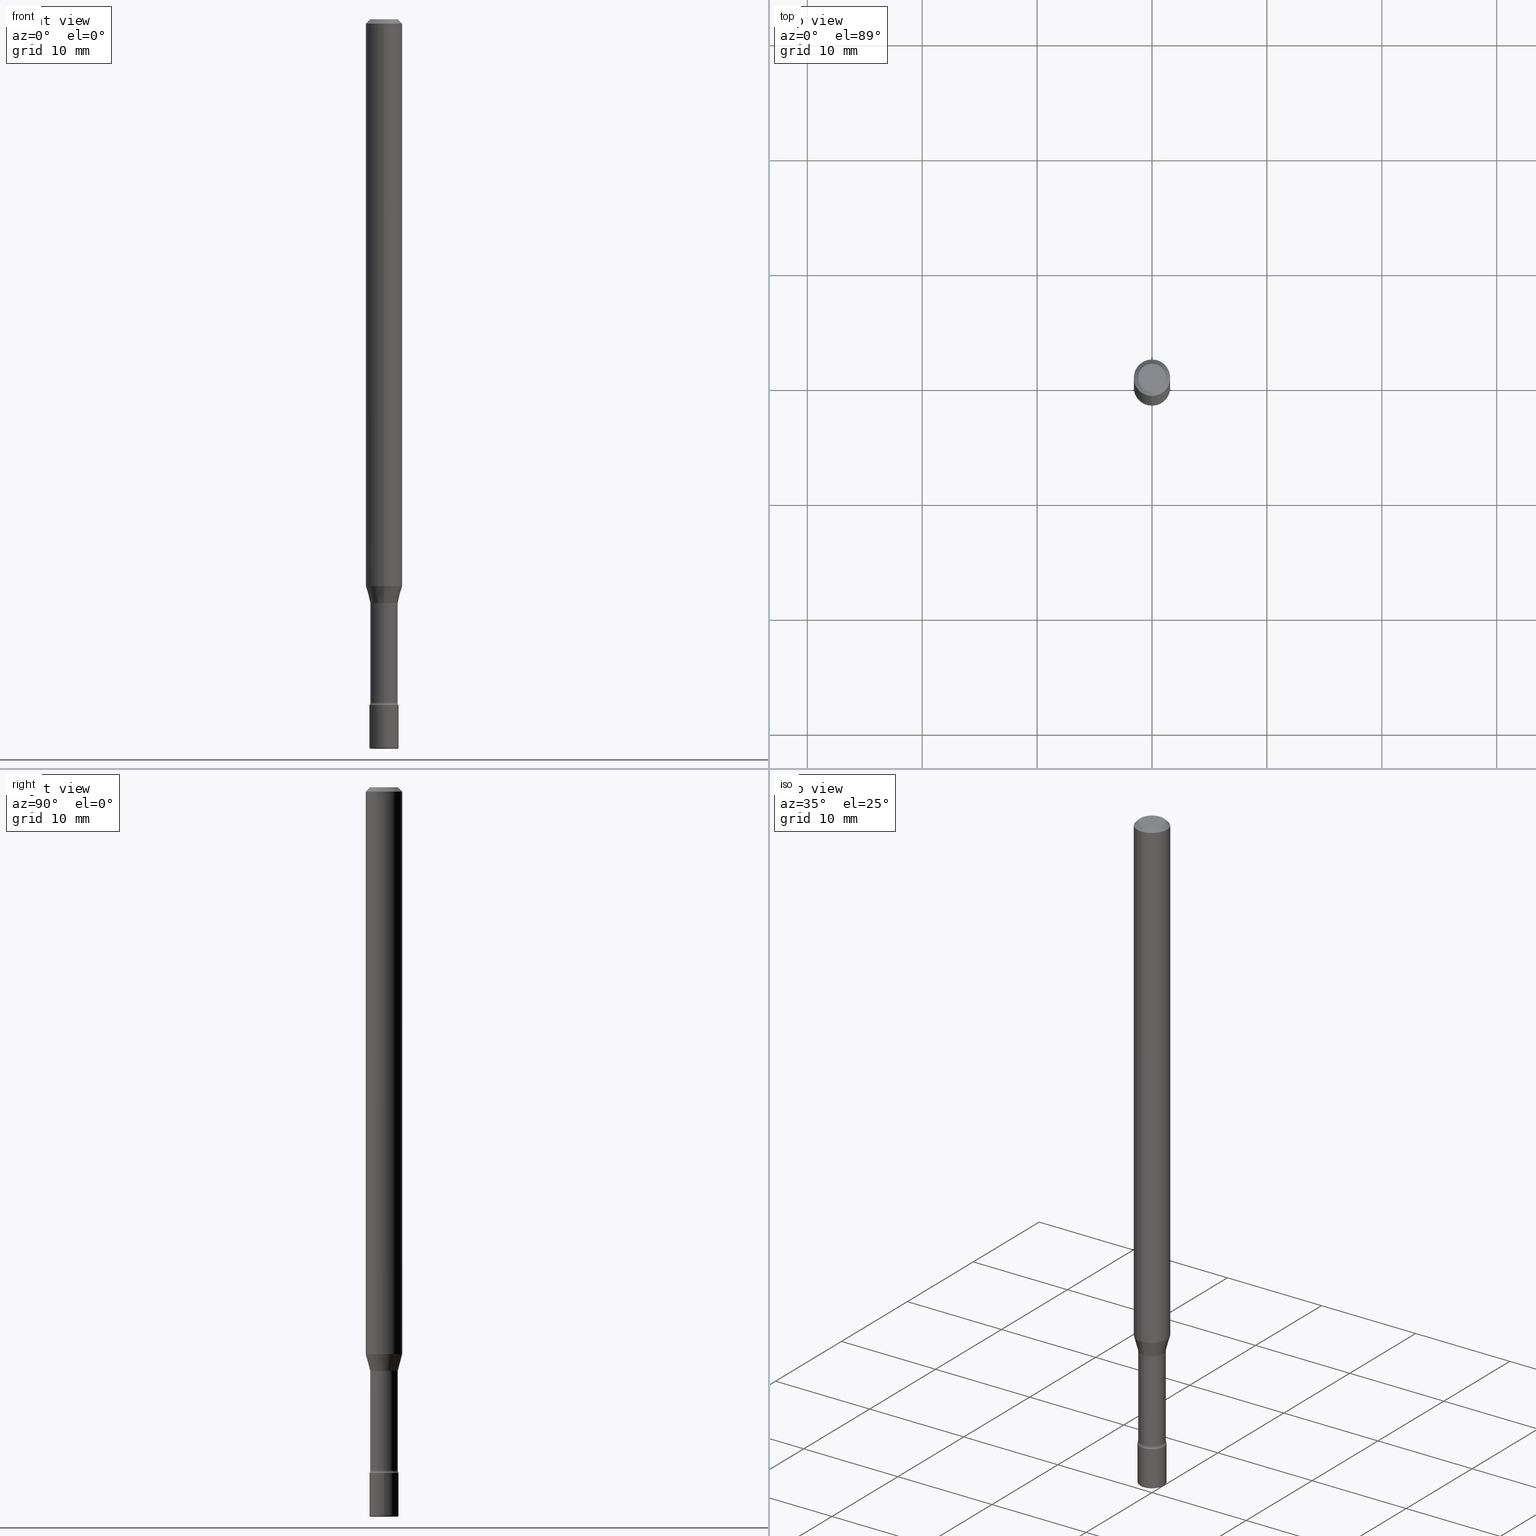
[diagram: canonical four-view strip — front | top / right | iso, engineering-drawing reading convention]
A machine part, canonical four-view strip (front | top / right | iso — engineering-drawing reading convention). The complete STEP part file that produces these views, byte-faithful:
ISO-10303-21;
HEADER;
FILE_DESCRIPTION (( 'STEP AP203' ),
    '1' );
FILE_NAME ('08959.STEP',
    '2024-03-06T20:12:32',
    ( '' ),
    ( '' ),
    'SwSTEP 2.0',
    'SolidWorks 2023',
    '' );
FILE_SCHEMA (( 'CONFIG_CONTROL_DESIGN' ));
ENDSEC;

DATA;
#1 = LINE ( 'NONE', #183, #16 ) ;
#2 = LOCAL_TIME ( 15, 12, 32.00000000000000000, #310 ) ;
#3 = CARTESIAN_POINT ( 'NONE',  ( -1.169113584055446105E-44, 1.669184350826100908E-30, 4.780733988912460139E-16 ) ) ;
#4 = ORIENTED_EDGE ( 'NONE', *, *, #448, .T. ) ;
#5 = LINE ( 'NONE', #251, #171 ) ;
#6 = EDGE_LOOP ( 'NONE', ( #67, #489, #230, #445 ) ) ;
#7 = ORIENTED_EDGE ( 'NONE', *, *, #199, .F. ) ;
#8 = VERTEX_POINT ( 'NONE', #492 ) ;
#9 = ADVANCED_FACE ( 'NONE', ( #273 ), #209, .T. ) ;
#10 = CYLINDRICAL_SURFACE ( 'NONE', #491, 0.06250000000000000000 ) ;
#11 = EDGE_LOOP ( 'NONE', ( #221, #96, #320, #276 ) ) ;
#12 = ORIENTED_EDGE ( 'NONE', *, *, #242, .F. ) ;
#13 = PERSON_AND_ORGANIZATION ( #355, #427 ) ;
#14 = AXIS2_PLACEMENT_3D ( 'NONE', #316, #447, #131 ) ;
#15 = ORIENTED_EDGE ( 'NONE', *, *, #540, .T. ) ;
#16 = VECTOR ( 'NONE', #361, 39.37007874015748143 ) ;
#17 = LINE ( 'NONE', #194, #461 ) ;
#18 = EDGE_CURVE ( 'NONE', #228, #111, #451, .T. ) ;
#19 = ORIENTED_EDGE ( 'NONE', *, *, #479, .F. ) ;
#20 = DIRECTION ( 'NONE',  ( -6.982962677686265922E-15, -1.000000000000000000, 5.812442539711197800E-15 ) ) ;
#21 = VERTEX_POINT ( 'NONE', #225 ) ;
#22 = PRODUCT_DEFINITION_SHAPE ( 'NONE', 'NONE',  #473 ) ;
#23 = CARTESIAN_POINT ( 'NONE',  ( 5.724842475279404612E-29, -8.173557814231803142E-15, -2.341000000000000192 ) ) ;
#24 = EDGE_LOOP ( 'NONE', ( #317, #494, #382, #223 ) ) ;
#25 = CONICAL_SURFACE ( 'NONE', #44, 0.04751111260566397154, 0.2617993877991500740 ) ;
#26 = APPROVAL_PERSON_ORGANIZATION ( #219, #367, #263 ) ;
#27 = APPLICATION_PROTOCOL_DEFINITION ( 'international standard', 'config_control_design', 1994, #246 ) ;
#28 = CARTESIAN_POINT ( 'NONE',  ( 4.895798612145609407E-29, -6.989812188375539244E-15, -2.001974787463811190 ) ) ;
#29 =( CONVERSION_BASED_UNIT ( 'INCH', #33 ) LENGTH_UNIT ( ) NAMED_UNIT ( #390 ) );
#30 = ORIENTED_EDGE ( 'NONE', *, *, #568, .T. ) ;
#31 = ADVANCED_FACE ( 'NONE', ( #496 ), #407, .T. ) ;
#32 = CARTESIAN_POINT ( 'NONE',  ( 6.101444671431915719E-29, -8.711245940413648329E-15, -2.495000000000000107 ) ) ;
#33 = LENGTH_MEASURE_WITH_UNIT ( LENGTH_MEASURE( 0.02539999999999999897 ), #552 );
#34 = ORIENTED_EDGE ( 'NONE', *, *, #155, .F. ) ;
#35 = DIRECTION ( 'NONE',  ( -2.445484649858063703E-29, 3.491458649801748196E-15, 1.000000000000000000 ) ) ;
#36 = VECTOR ( 'NONE', #428, 39.37007874015748143 ) ;
#37 = AXIS2_PLACEMENT_3D ( 'NONE', #560, #438, #207 ) ;
#38 = APPROVAL_PERSON_ORGANIZATION ( #167, #40, #457 ) ;
#39 = DIRECTION ( 'NONE',  ( -2.445484649858063703E-29, 3.491458649801748196E-15, 1.000000000000000000 ) ) ;
#40 = APPROVAL ( #123, 'UNSPECIFIED' ) ;
#41 = CARTESIAN_POINT ( 'NONE',  ( 4.895766893511868006E-29, -6.989857611264368100E-15, -2.001974787463811190 ) ) ;
#42 = DIRECTION ( 'NONE',  ( -2.445484649858063703E-29, 3.491458649801748196E-15, 1.000000000000000000 ) ) ;
#43 = DATE_AND_TIME ( #564, #380 ) ;
#44 = AXIS2_PLACEMENT_3D ( 'NONE', #442, #42, #437 ) ;
#45 = ADVANCED_FACE ( 'NONE', ( #59 ), #529, .T. ) ;
#46 = CARTESIAN_POINT ( 'NONE',  ( 3.668226974787102280E-31, -5.237187974702632377E-17, -0.01500000000000002720 ) ) ;
#47 = DIRECTION ( 'NONE',  ( -1.000000000000000000, 6.982962677686265922E-15, -4.883557194083112340E-29 ) ) ;
#48 = ORIENTED_EDGE ( 'NONE', *, *, #155, .T. ) ;
#49 = DIRECTION ( 'NONE',  ( -2.445484649858063983E-29, 3.491458649801747802E-15, 1.000000000000000000 ) ) ;
#50 = CARTESIAN_POINT ( 'NONE',  ( 6.101444671431915719E-29, -8.711245940413648329E-15, -2.495000000000000107 ) ) ;
#51 = AXIS2_PLACEMENT_3D ( 'NONE', #277, #450, #528 ) ;
#52 = DIRECTION ( 'NONE',  ( 1.000000000000000000, -7.105427357601001070E-15, 4.926315230681463443E-29 ) ) ;
#53 = ORIENTED_EDGE ( 'NONE', *, *, #309, .T. ) ;
#54 = EDGE_CURVE ( 'NONE', #252, #362, #521, .T. ) ;
#55 = DIRECTION ( 'NONE',  ( -6.982962677686265922E-15, -1.000000000000000000, 3.491458649801748196E-15 ) ) ;
#56 = EDGE_LOOP ( 'NONE', ( #187, #490, #142, #293 ) ) ;
#57 = EDGE_LOOP ( 'NONE', ( #300, #411, #140, #409 ) ) ;
#58 = CALENDAR_DATE ( 2024, 6, 3 ) ;
#59 = FACE_OUTER_BOUND ( 'NONE', #57, .T. ) ;
#60 = ADVANCED_FACE ( 'NONE', ( #467 ), #279, .F. ) ;
#61 = AXIS2_PLACEMENT_3D ( 'NONE', #112, #385, #203 ) ;
#62 = DATE_AND_TIME ( #459, #400 ) ;
#63 = AXIS2_PLACEMENT_3D ( 'NONE', #352, #168, #75 ) ;
#64 = DIRECTION ( 'NONE',  ( -6.982962677686265922E-15, -1.000000000000000000, 5.749913744050249041E-15 ) ) ;
#65 = CARTESIAN_POINT ( 'NONE',  ( 3.668226974787102280E-31, -5.237187974702632377E-17, -0.01500000000000002720 ) ) ;
#66 = DIRECTION ( 'NONE',  ( 7.105427357601006592E-15, 1.000000000000000000, 0.000000000000000000 ) ) ;
#67 = ORIENTED_EDGE ( 'NONE', *, *, #550, .F. ) ;
#68 = CIRCLE ( 'NONE', #143, 0.04700000000000000705 ) ;
#69 = DIRECTION ( 'NONE',  ( -6.982962677686265922E-15, -1.000000000000000000, 3.491458649801747407E-15 ) ) ;
#70 = AXIS2_PLACEMENT_3D ( 'NONE', #488, #94, #104 ) ;
#71 = ADVANCED_FACE ( 'NONE', ( #378 ), #347, .T. ) ;
#72 = CALENDAR_DATE ( 2024, 6, 3 ) ;
#73 = DIRECTION ( 'NONE',  ( 1.000000000000000000, -7.105427357601001070E-15, 4.926315230681463443E-29 ) ) ;
#74 = DIRECTION ( 'NONE',  ( -2.445484649858063703E-29, 3.491458649801748196E-15, 1.000000000000000000 ) ) ;
#75 = DIRECTION ( 'NONE',  ( 1.000000000000000000, -6.982962677686267499E-15, 4.876176775795936353E-29 ) ) ;
#76 = DIRECTION ( 'NONE',  ( 1.000000000000000000, 0.000000000000000000, 0.000000000000000000 ) ) ;
#77 = VERTEX_POINT ( 'NONE', #551 ) ;
#78 = EDGE_CURVE ( 'NONE', #8, #272, #201, .T. ) ;
#79 = DIRECTION ( 'NONE',  ( -6.982962677686265922E-15, -1.000000000000000000, 3.491458649801746619E-15 ) ) ;
#80 = AXIS2_PLACEMENT_3D ( 'NONE', #250, #288, #545 ) ;
#81 = LINE ( 'NONE', #397, #290 ) ;
#82 = CARTESIAN_POINT ( 'NONE',  ( 3.552713678801077488E-16, 0.04999999999999183570, -2.350000000000000533 ) ) ;
#83 = EDGE_CURVE ( 'NONE', #487, #458, #555, .T. ) ;
#84 = FACE_OUTER_BOUND ( 'NONE', #208, .T. ) ;
#85 = PERSON_AND_ORGANIZATION_ROLE ( 'creator' ) ;
#86 = CC_DESIGN_PERSON_AND_ORGANIZATION_ASSIGNMENT ( #351, #402, ( #259 ) ) ;
#87 = AXIS2_PLACEMENT_3D ( 'NONE', #311, #52, #482 ) ;
#88 = CIRCLE ( 'NONE', #493, 0.05000000000000000278 ) ;
#89 = CARTESIAN_POINT ( 'NONE',  ( -0.04500000000000000527, -8.382466844274708353E-15, -2.499999999999999556 ) ) ;
#90 = ORIENTED_EDGE ( 'NONE', *, *, #540, .F. ) ;
#91 = ORIENTED_EDGE ( 'NONE', *, *, #511, .F. ) ;
#92 = CARTESIAN_POINT ( 'NONE',  ( 5.724842475279404612E-29, -8.173557814231803142E-15, -2.341000000000000192 ) ) ;
#93 = ORIENTED_EDGE ( 'NONE', *, *, #199, .T. ) ;
#94 = DIRECTION ( 'NONE',  ( -2.445484649858063703E-29, 3.491458649801747802E-15, 1.000000000000000000 ) ) ;
#95 = EDGE_CURVE ( 'NONE', #369, #312, #531, .T. ) ;
#96 = ORIENTED_EDGE ( 'NONE', *, *, #479, .T. ) ;
#97 = AXIS2_PLACEMENT_3D ( 'NONE', #150, #332, #151 ) ;
#98 = CIRCLE ( 'NONE', #37, 0.05000000000000000278 ) ;
#99 = LOCAL_TIME ( 15, 12, 32.00000000000000000, #469 ) ;
#100 = CARTESIAN_POINT ( 'NONE',  ( 5.724879565317726717E-29, -8.173504699185892323E-15, -2.340999999999999748 ) ) ;
#101 = APPROVAL_PERSON_ORGANIZATION ( #114, #158, #296 ) ;
#102 = CC_DESIGN_PERSON_AND_ORGANIZATION_ASSIGNMENT ( #172, #85, ( #523 ) ) ;
#103 = ORIENTED_EDGE ( 'NONE', *, *, #162, .F. ) ;
#104 = DIRECTION ( 'NONE',  ( -6.982962677686265922E-15, -1.000000000000000000, 3.491458649801747802E-15 ) ) ;
#105 = CARTESIAN_POINT ( 'NONE',  ( 0.000000000000000000, 0.000000000000000000, 0.000000000000000000 ) ) ;
#106 = DIRECTION ( 'NONE',  ( -2.445484649858063703E-29, 3.491458649801748196E-15, 1.000000000000000000 ) ) ;
#107 = AXIS2_PLACEMENT_3D ( 'NONE', #419, #108, #197 ) ;
#108 = DIRECTION ( 'NONE',  ( -2.438088387897960049E-29, 3.491481338843145188E-15, 1.000000000000000000 ) ) ;
#109 = CARTESIAN_POINT ( 'NONE',  ( 4.886304542117271840E-29, -6.976257348469189350E-15, -1.998092501787273045 ) ) ;
#110 = PRODUCT ( '08959', '08959', '', ( #157 ) ) ;
#111 = VERTEX_POINT ( 'NONE', #510 ) ;
#112 = CARTESIAN_POINT ( 'NONE',  ( 0.04500000000000000527, -9.025479260909530016E-15, -2.495000000000000107 ) ) ;
#113 = EDGE_CURVE ( 'NONE', #463, #569, #563, .T. ) ;
#114 = PERSON_AND_ORGANIZATION ( #355, #427 ) ;
#115 = AXIS2_PLACEMENT_3D ( 'NONE', #544, #299, #499 ) ;
#116 = CARTESIAN_POINT ( 'NONE',  ( 4.440892098500625669E-16, 0.06250000000000000000, 2.598572332786367763E-16 ) ) ;
#117 = AXIS2_PLACEMENT_3D ( 'NONE', #349, #265, #559 ) ;
#118 = VECTOR ( 'NONE', #416, 39.37007874015748143 ) ;
#119 = DIRECTION ( 'NONE',  ( -6.982962677686265922E-15, -1.000000000000000000, 3.491458649801746619E-15 ) ) ;
#120 = EDGE_CURVE ( 'NONE', #272, #315, #389, .T. ) ;
#121 = ORIENTED_EDGE ( 'NONE', *, *, #291, .F. ) ;
#122 = FACE_OUTER_BOUND ( 'NONE', #342, .T. ) ;
#123 = APPROVAL_STATUS ( 'not_yet_approved' ) ;
#124 = FACE_OUTER_BOUND ( 'NONE', #500, .T. ) ;
#125 = AXIS2_PLACEMENT_3D ( 'NONE', #50, #417, #179 ) ;
#126 = AXIS2_PLACEMENT_3D ( 'NONE', #295, #73, #66 ) ;
#127 = ORIENTED_EDGE ( 'NONE', *, *, #546, .F. ) ;
#128 = DIRECTION ( 'NONE',  ( 1.839019923739598738E-15, 0.2588190451025247363, 0.9659258262890673130 ) ) ;
#129 = DIRECTION ( 'NONE',  ( 2.445484649858063703E-29, -3.491458649801748196E-15, -1.000000000000000000 ) ) ;
#130 = EDGE_CURVE ( 'NONE', #278, #21, #68, .T. ) ;
#131 = DIRECTION ( 'NONE',  ( -1.000000000000000000, 7.105427357601061812E-15, 0.000000000000000000 ) ) ;
#132 = EDGE_LOOP ( 'NONE', ( #165, #509, #466, #186 ) ) ;
#133 = AXIS2_PLACEMENT_3D ( 'NONE', #329, #501, #292 ) ;
#134 = CARTESIAN_POINT ( 'NONE',  ( 3.339550858073042806E-16, 0.04699999999999300571, -2.001974787463811190 ) ) ;
#135 = ORIENTED_EDGE ( 'NONE', *, *, #173, .F. ) ;
#136 = CC_DESIGN_PERSON_AND_ORGANIZATION_ASSIGNMENT ( #13, #394, ( #110 ) ) ;
#137 = APPLICATION_CONTEXT ( 'configuration controlled 3d designs of mechanical parts and assemblies' ) ;
#138 = CARTESIAN_POINT ( 'NONE',  ( 6.101444671431915719E-29, -8.711245940413648329E-15, -2.495000000000000107 ) ) ;
#139 = ORIENTED_EDGE ( 'NONE', *, *, #215, .T. ) ;
#140 = ORIENTED_EDGE ( 'NONE', *, *, #336, .F. ) ;
#141 = DIRECTION ( 'NONE',  ( -2.445484649858063703E-29, 3.491458649801748196E-15, 1.000000000000000000 ) ) ;
#142 = ORIENTED_EDGE ( 'NONE', *, *, #505, .T. ) ;
#143 = AXIS2_PLACEMENT_3D ( 'NONE', #243, #507, #431 ) ;
#144 = TOROIDAL_SURFACE ( 'NONE', #322, 0.06200000000000001343, 0.01500000000000004108 ) ;
#145 = DIRECTION ( 'NONE',  ( -2.445484649858063703E-29, 3.491458649801748196E-15, 1.000000000000000000 ) ) ;
#146 = ORIENTED_EDGE ( 'NONE', *, *, #505, .F. ) ;
#147 = EDGE_CURVE ( 'NONE', #487, #272, #471, .T. ) ;
#148 = ORIENTED_EDGE ( 'NONE', *, *, #113, .T. ) ;
#149 = DIRECTION ( 'NONE',  ( 0.000000000000000000, 0.000000000000000000, 1.000000000000000000 ) ) ;
#150 = CARTESIAN_POINT ( 'NONE',  ( 4.749505868798926460E-29, -6.780947632962913740E-15, -1.942153212482682578 ) ) ;
#151 = DIRECTION ( 'NONE',  ( -6.982962677686265922E-15, -1.000000000000000000, 4.370956789862821150E-15 ) ) ;
#152 = EDGE_LOOP ( 'NONE', ( #7, #48, #366, #338 ) ) ;
#153 = CONICAL_SURFACE ( 'NONE', #181, 0.06250000000000000000, 0.7853981633974485010 ) ;
#154 = DIRECTION ( 'NONE',  ( -6.982962677686265922E-15, -1.000000000000000000, 3.483106191921935554E-15 ) ) ;
#155 = EDGE_CURVE ( 'NONE', #255, #362, #297, .T. ) ;
#156 = DIRECTION ( 'NONE',  ( -2.445468806185136597E-29, 3.491481338843145583E-15, 1.000000000000000000 ) ) ;
#157 = MECHANICAL_CONTEXT ( 'NONE', #137, 'mechanical' ) ;
#158 = APPROVAL ( #426, 'UNSPECIFIED' ) ;
#159 = DIRECTION ( 'NONE',  ( -6.982962677686265133E-15, -1.000000000000000000, 3.491458649801748196E-15 ) ) ;
#160 = DIRECTION ( 'NONE',  ( -2.445468806185136877E-29, 3.491481338843145188E-15, 1.000000000000000000 ) ) ;
#161 = CIRCLE ( 'NONE', #80, 0.05000000000000000278 ) ;
#162 = EDGE_CURVE ( 'NONE', #422, #463, #266, .T. ) ;
#163 = CC_DESIGN_APPROVAL ( #40, ( #473 ) ) ;
#164 = COORDINATED_UNIVERSAL_TIME_OFFSET ( 5, 0, .BEHIND. ) ;
#165 = ORIENTED_EDGE ( 'NONE', *, *, #147, .F. ) ;
#166 = LINE ( 'NONE', #515, #441 ) ;
#167 = PERSON_AND_ORGANIZATION ( #355, #427 ) ;
#168 = DIRECTION ( 'NONE',  ( -2.445468806185136597E-29, 3.491481338843145583E-15, 1.000000000000000000 ) ) ;
#169 = DIRECTION ( 'NONE',  ( -6.982962677686265922E-15, -1.000000000000000000, 4.370956789862821150E-15 ) ) ;
#170 = AXIS2_PLACEMENT_3D ( 'NONE', #100, #145, #413 ) ;
#171 = VECTOR ( 'NONE', #325, 39.37007874015748143 ) ;
#172 = PERSON_AND_ORGANIZATION ( #355, #427 ) ;
#173 = EDGE_CURVE ( 'NONE', #312, #369, #161, .T. ) ;
#174 = CARTESIAN_POINT ( 'NONE',  ( 4.895766893511868006E-29, -6.989857611264368100E-15, -2.001974787463811190 ) ) ;
#175 = SHAPE_DEFINITION_REPRESENTATION ( #22, #372 ) ;
#176 = CARTESIAN_POINT ( 'NONE',  ( 3.908379845742528290E-16, 0.04751111260565699795, -1.998092501787273267 ) ) ;
#177 = APPROVAL_STATUS ( 'not_yet_approved' ) ;
#178 = CARTESIAN_POINT ( 'NONE',  ( 3.316907271900975110E-16, 0.04749999999999998668, 5.964728111673710049E-17 ) ) ;
#179 = DIRECTION ( 'NONE',  ( 1.000000000000000000, -6.982962677686247778E-15, 4.883557194083106175E-29 ) ) ;
#180 = EDGE_CURVE ( 'NONE', #237, #422, #247, .T. ) ;
#181 = AXIS2_PLACEMENT_3D ( 'NONE', #387, #129, #520 ) ;
#182 = CC_DESIGN_APPROVAL ( #367, ( #259 ) ) ;
#183 = CARTESIAN_POINT ( 'NONE',  ( 3.339550858072470388E-16, 0.04700000000000000705, 3.139748423505638775E-16 ) ) ;
#184 = EDGE_LOOP ( 'NONE', ( #518, #205 ) ) ;
#185 = DIRECTION ( 'NONE',  ( 2.445484649858063703E-29, -3.491458649801747802E-15, -1.000000000000000000 ) ) ;
#186 = ORIENTED_EDGE ( 'NONE', *, *, #120, .F. ) ;
#187 = ORIENTED_EDGE ( 'NONE', *, *, #485, .F. ) ;
#188 = ADVANCED_FACE ( 'NONE', ( #241 ), #239, .T. ) ;
#189 = DIRECTION ( 'NONE',  ( -2.445484649858063703E-29, 3.491458649801748196E-15, 1.000000000000000000 ) ) ;
#190 = DIRECTION ( 'NONE',  ( -2.445468806185136597E-29, 3.491481338843145583E-15, 1.000000000000000000 ) ) ;
#191 = AXIS2_PLACEMENT_3D ( 'NONE', #436, #39, #169 ) ;
#192 = CARTESIAN_POINT ( 'NONE',  ( -4.287811248607203282E-16, -0.06250000000000005551, -0.01499999999999981036 ) ) ;
#193 = ORIENTED_EDGE ( 'NONE', *, *, #448, .F. ) ;
#194 = CARTESIAN_POINT ( 'NONE',  ( -0.05000000000000000278, 3.552713678800501127E-16, -2.459467545127453311E-30 ) ) ;
#195 = ORIENTED_EDGE ( 'NONE', *, *, #95, .T. ) ;
#196 = ORIENTED_EDGE ( 'NONE', *, *, #363, .T. ) ;
#197 = DIRECTION ( 'NONE',  ( 1.000000000000000000, -6.982962677686265922E-15, 4.876176775795935793E-29 ) ) ;
#198 = ORIENTED_EDGE ( 'NONE', *, *, #180, .F. ) ;
#199 = EDGE_CURVE ( 'NONE', #255, #228, #17, .T. ) ;
#200 = AXIS2_PLACEMENT_3D ( 'NONE', #105, #534, #359 ) ;
#201 = LINE ( 'NONE', #548, #36 ) ;
#202 = AXIS2_PLACEMENT_3D ( 'NONE', #337, #74, #159 ) ;
#203 = DIRECTION ( 'NONE',  ( 1.000000000000000000, -6.982962677686075017E-15, 0.000000000000000000 ) ) ;
#204 = APPROVAL_DATE_TIME ( #430, #158 ) ;
#205 = ORIENTED_EDGE ( 'NONE', *, *, #309, .F. ) ;
#206 = EDGE_CURVE ( 'NONE', #252, #506, #513, .T. ) ;
#207 = DIRECTION ( 'NONE',  ( 1.000000000000000000, -6.982962677686274599E-15, 0.000000000000000000 ) ) ;
#208 = EDGE_LOOP ( 'NONE', ( #452, #15, #193, #127 ) ) ;
#209 = TOROIDAL_SURFACE ( 'NONE', #125, 0.04500000000000000527, 0.004999999999999767651 ) ;
#210 = DIRECTION ( 'NONE',  ( -2.445484649858063703E-29, 3.491458649801748196E-15, 1.000000000000000000 ) ) ;
#211 = AXIS2_PLACEMENT_3D ( 'NONE', #462, #294, #464 ) ;
#212 = VECTOR ( 'NONE', #49, 39.37007874015748143 ) ;
#213 = DIRECTION ( 'NONE',  ( -2.445484649858063703E-29, 3.491458649801748196E-15, 1.000000000000000000 ) ) ;
#214 = CARTESIAN_POINT ( 'NONE',  ( -4.364351673553912750E-16, -0.06250000000000005551, -0.01499999999999981036 ) ) ;
#215 = EDGE_CURVE ( 'NONE', #77, #8, #565, .T. ) ;
#216 = CARTESIAN_POINT ( 'NONE',  ( -0.04999999999999989175, -8.355974572533597921E-15, -2.495000000000000107 ) ) ;
#217 = CIRCLE ( 'NONE', #14, 0.004999999999999767651 ) ;
#218 = CARTESIAN_POINT ( 'NONE',  ( -4.364351673553439433E-16, -0.06250000000000675848, -1.942153212482682134 ) ) ;
#219 = PERSON_AND_ORGANIZATION ( #355, #427 ) ;
#220 = DIRECTION ( 'NONE',  ( -6.982962677686268288E-15, -1.000000000000000000, 0.000000000000000000 ) ) ;
#221 = ORIENTED_EDGE ( 'NONE', *, *, #206, .T. ) ;
#222 = ADVANCED_FACE ( 'NONE', ( #84 ), #260, .T. ) ;
#223 = ORIENTED_EDGE ( 'NONE', *, *, #384, .F. ) ;
#224 = LINE ( 'NONE', #537, #281 ) ;
#225 = CARTESIAN_POINT ( 'NONE',  ( 3.446132268437060393E-16, 0.04699999999999183303, -2.341000000000000192 ) ) ;
#226 = AXIS2_PLACEMENT_3D ( 'NONE', #178, #185, #495 ) ;
#227 = DIRECTION ( 'NONE',  ( -6.982962677686265922E-15, -1.000000000000000000, 3.491458649801747407E-15 ) ) ;
#228 = VERTEX_POINT ( 'NONE', #399 ) ;
#229 = PLANE ( 'NONE',  #226 ) ;
#230 = ORIENTED_EDGE ( 'NONE', *, *, #78, .T. ) ;
#231 = EDGE_LOOP ( 'NONE', ( #446, #558, #195, #146 ) ) ;
#232 = ADVANCED_FACE ( 'NONE', ( #124 ), #25, .T. ) ;
#233 = PERSON_AND_ORGANIZATION ( #355, #427 ) ;
#234 = ORIENTED_EDGE ( 'NONE', *, *, #95, .F. ) ;
#235 = AXIS2_PLACEMENT_3D ( 'NONE', #23, #547, #381 ) ;
#236 = CIRCLE ( 'NONE', #51, 0.01500000000000003587 ) ;
#237 = VERTEX_POINT ( 'NONE', #562 ) ;
#238 = DATE_TIME_ROLE ( 'creation_date' ) ;
#239 = PLANE ( 'NONE',  #107 ) ;
#240 = ORIENTED_EDGE ( 'NONE', *, *, #424, .T. ) ;
#241 = FACE_OUTER_BOUND ( 'NONE', #455, .T. ) ;
#242 = EDGE_CURVE ( 'NONE', #422, #487, #81, .T. ) ;
#243 = CARTESIAN_POINT ( 'NONE',  ( 5.724879565317726717E-29, -8.173504699185892323E-15, -2.340999999999999748 ) ) ;
#244 = CC_DESIGN_PERSON_AND_ORGANIZATION_ASSIGNMENT ( #354, #570, ( #523 ) ) ;
#245 = AXIS2_PLACEMENT_3D ( 'NONE', #421, #106, #335 ) ;
#246 = APPLICATION_CONTEXT ( 'configuration controlled 3d designs of mechanical parts and assemblies' ) ;
#247 = CIRCLE ( 'NONE', #350, 0.04751111260566397154 ) ;
#248 = LOCAL_TIME ( 15, 12, 32.00000000000000000, #557 ) ;
#249 = DIRECTION ( 'NONE',  ( 1.000000000000000000, -6.982962677686247778E-15, 4.883557194083106175E-29 ) ) ;
#250 = CARTESIAN_POINT ( 'NONE',  ( 5.746888927166449379E-29, -8.204927827034108794E-15, -2.350000000000000089 ) ) ;
#251 = CARTESIAN_POINT ( 'NONE',  ( -3.281992458512545531E-16, -0.04700000000000000705, 6.421719554319281504E-16 ) ) ;
#252 = VERTEX_POINT ( 'NONE', #253 ) ;
#253 = CARTESIAN_POINT ( 'NONE',  ( 0.04500000000000000527, -9.042936667603743474E-15, -2.499999999999999556 ) ) ;
#254 = APPLICATION_PROTOCOL_DEFINITION ( 'international standard', 'config_control_design', 1994, #137 ) ;
#255 = VERTEX_POINT ( 'NONE', #216 ) ;
#256 = AXIS2_PLACEMENT_3D ( 'NONE', #324, #190, #542 ) ;
#257 = CYLINDRICAL_SURFACE ( 'NONE', #63, 0.05000000000000000278 ) ;
#258 = AXIS2_PLACEMENT_3D ( 'NONE', #92, #356, #55 ) ;
#259 = SECURITY_CLASSIFICATION ( '', '', #526 ) ;
#260 = CYLINDRICAL_SURFACE ( 'NONE', #398, 0.04700000000000000705 ) ;
#261 = ADVANCED_FACE ( 'NONE', ( #566 ), #340, .T. ) ;
#262 = DIRECTION ( 'NONE',  ( -6.982962677686265922E-15, -1.000000000000000000, 3.491458649801748196E-15 ) ) ;
#263 = APPROVAL_ROLE ( '' ) ;
#264 = EDGE_LOOP ( 'NONE', ( #135, #234 ) ) ;
#265 = DIRECTION ( 'NONE',  ( -2.445468806185136597E-29, 3.491481338843145583E-15, 1.000000000000000000 ) ) ;
#266 = CIRCLE ( 'NONE', #126, 0.01500000000000003587 ) ;
#267 = CONICAL_SURFACE ( 'NONE', #305, 0.06250000000000000000, 0.7853981633974485010 ) ;
#268 = CIRCLE ( 'NONE', #202, 0.04749999999999998668 ) ;
#269 = DATE_AND_TIME ( #396, #2 ) ;
#270 = ADVANCED_FACE ( 'NONE', ( #434 ), #348, .F. ) ;
#271 = PLANE ( 'NONE',  #70 ) ;
#272 = VERTEX_POINT ( 'NONE', #392 ) ;
#273 = FACE_OUTER_BOUND ( 'NONE', #11, .T. ) ;
#274 = PRODUCT_RELATED_PRODUCT_CATEGORY ( 'detail', '', ( #110 ) ) ;
#275 = FACE_OUTER_BOUND ( 'NONE', #132, .T. ) ;
#276 = ORIENTED_EDGE ( 'NONE', *, *, #54, .F. ) ;
#277 = CARTESIAN_POINT ( 'NONE',  ( -4.329436860164915685E-16, -0.06200000000000822215, -2.340999999999999748 ) ) ;
#278 = VERTEX_POINT ( 'NONE', #395 ) ;
#279 = TOROIDAL_SURFACE ( 'NONE', #235, 0.06200000000000004813, 0.01500000000000004281 ) ;
#280 = AXIS2_PLACEMENT_3D ( 'NONE', #3, #423, #69 ) ;
#281 = VECTOR ( 'NONE', #567, 39.37007874015748854 ) ;
#282 = CARTESIAN_POINT ( 'NONE',  ( 4.886304542117271840E-29, -6.976257348469189350E-15, -1.998092501787273045 ) ) ;
#283 = ORIENTED_EDGE ( 'NONE', *, *, #78, .F. ) ;
#284 = DIRECTION ( 'NONE',  ( -2.445484649858063703E-29, 3.491458649801748196E-15, 1.000000000000000000 ) ) ;
#285 = ORIENTED_EDGE ( 'NONE', *, *, #363, .F. ) ;
#286 = UNCERTAINTY_MEASURE_WITH_UNIT (LENGTH_MEASURE( 1.000000000000000082E-05 ), #29, 'distance_accuracy_value', 'NONE');
#287 = CARTESIAN_POINT ( 'NONE',  ( 0.000000000000000000, 0.000000000000000000, 0.000000000000000000 ) ) ;
#288 = DIRECTION ( 'NONE',  ( -2.445484649858063703E-29, 3.491458649801748196E-15, 1.000000000000000000 ) ) ;
#289 = VECTOR ( 'NONE', #331, 39.37007874015748143 ) ;
#290 = VECTOR ( 'NONE', #128, 39.37007874015748854 ) ;
#291 = EDGE_CURVE ( 'NONE', #111, #228, #98, .T. ) ;
#292 = DIRECTION ( 'NONE',  ( 1.000000000000000000, -6.982962677686245411E-15, 0.000000000000000000 ) ) ;
#293 = ORIENTED_EDGE ( 'NONE', *, *, #173, .T. ) ;
#294 = DIRECTION ( 'NONE',  ( -2.445484649858063703E-29, 3.491458649801748196E-15, 1.000000000000000000 ) ) ;
#295 = CARTESIAN_POINT ( 'NONE',  ( 4.405364961713111201E-16, 0.06199999999999302597, -2.001974787463811190 ) ) ;
#296 = APPROVAL_ROLE ( '' ) ;
#297 = CIRCLE ( 'NONE', #115, 0.05000000000000000278 ) ;
#298 = CIRCLE ( 'NONE', #453, 0.04751111260566397154 ) ;
#299 = DIRECTION ( 'NONE',  ( -2.445468806185136597E-29, 3.491481338843145583E-15, 1.000000000000000000 ) ) ;
#300 = ORIENTED_EDGE ( 'NONE', *, *, #353, .T. ) ;
#301 = DIRECTION ( 'NONE',  ( -2.445484649858063703E-29, 3.491458649801748196E-15, 1.000000000000000000 ) ) ;
#302 = EDGE_LOOP ( 'NONE', ( #103, #198, #365, #4 ) ) ;
#303 = ADVANCED_FACE ( 'NONE', ( #308 ), #257, .T. ) ;
#304 = CARTESIAN_POINT ( 'NONE',  ( 3.668226974787102280E-31, -5.237187974702632377E-17, -0.01500000000000002720 ) ) ;
#305 = AXIS2_PLACEMENT_3D ( 'NONE', #46, #318, #410 ) ;
#306 =( GEOMETRIC_REPRESENTATION_CONTEXT ( 3 ) GLOBAL_UNCERTAINTY_ASSIGNED_CONTEXT ( ( #286 ) ) GLOBAL_UNIT_ASSIGNED_CONTEXT ( ( #29, #388, #383 ) ) REPRESENTATION_CONTEXT ( 'NONE', 'WORKASPACE' ) );
#307 = CARTESIAN_POINT ( 'NONE',  ( 4.886304542117271840E-29, -6.976257348469189350E-15, -1.998092501787273045 ) ) ;
#308 = FACE_OUTER_BOUND ( 'NONE', #152, .T. ) ;
#309 = EDGE_CURVE ( 'NONE', #506, #252, #371, .T. ) ;
#310 = COORDINATED_UNIVERSAL_TIME_OFFSET ( 5, 0, .BEHIND. ) ;
#311 = CARTESIAN_POINT ( 'NONE',  ( 4.405364961713196496E-16, 0.06199999999999188105, -2.341000000000000192 ) ) ;
#312 = VERTEX_POINT ( 'NONE', #343 ) ;
#313 = AXIS2_PLACEMENT_3D ( 'NONE', #174, #35, #262 ) ;
#314 = DIRECTION ( 'NONE',  ( 1.000000000000000000, -6.982962677686254878E-15, 0.000000000000000000 ) ) ;
#315 = VERTEX_POINT ( 'NONE', #214 ) ;
#316 = CARTESIAN_POINT ( 'NONE',  ( -0.04500000000000000527, -8.391501709321602173E-15, -2.495000000000000107 ) ) ;
#317 = ORIENTED_EDGE ( 'NONE', *, *, #180, .T. ) ;
#318 = DIRECTION ( 'NONE',  ( 2.445484649858063703E-29, -3.491458649801748196E-15, -1.000000000000000000 ) ) ;
#319 = EDGE_CURVE ( 'NONE', #362, #111, #166, .T. ) ;
#320 = ORIENTED_EDGE ( 'NONE', *, *, #522, .F. ) ;
#321 = AXIS2_PLACEMENT_3D ( 'NONE', #28, #326, #20 ) ;
#322 = AXIS2_PLACEMENT_3D ( 'NONE', #41, #524, #474 ) ;
#323 = DIRECTION ( 'NONE',  ( -6.982962677686265922E-15, -1.000000000000000000, 5.812442539711197800E-15 ) ) ;
#324 = CARTESIAN_POINT ( 'NONE',  ( 5.746851694535070554E-29, -8.204981146281391784E-15, -2.350000000000000089 ) ) ;
#325 = DIRECTION ( 'NONE',  ( -2.445484649858063983E-29, 3.491458649801747802E-15, 1.000000000000000000 ) ) ;
#326 = DIRECTION ( 'NONE',  ( -2.445484649858063703E-29, 3.491458649801748196E-15, 1.000000000000000000 ) ) ;
#327 = EDGE_LOOP ( 'NONE', ( #90, #240, #517, #449 ) ) ;
#328 = ADVANCED_FACE ( 'NONE', ( #480 ), #153, .T. ) ;
#329 = CARTESIAN_POINT ( 'NONE',  ( 6.113672015462840371E-29, -8.728703347107863365E-15, -2.499999999999999556 ) ) ;
#330 = AXIS2_PLACEMENT_3D ( 'NONE', #358, #141, #323 ) ;
#331 = DIRECTION ( 'NONE',  ( -2.445484649858063983E-29, 3.491458649801747802E-15, 1.000000000000000000 ) ) ;
#332 = DIRECTION ( 'NONE',  ( -2.445484649858063703E-29, 3.491458649801748196E-15, 1.000000000000000000 ) ) ;
#333 = ORIENTED_EDGE ( 'NONE', *, *, #18, .T. ) ;
#334 = CARTESIAN_POINT ( 'NONE',  ( 3.142333204959431683E-16, 0.04499999999999128308, -2.500000000000000000 ) ) ;
#335 = DIRECTION ( 'NONE',  ( -6.982962677686265133E-15, -1.000000000000000000, 5.463695987328526437E-15 ) ) ;
#336 = EDGE_CURVE ( 'NONE', #315, #272, #476, .T. ) ;
#337 = CARTESIAN_POINT ( 'NONE',  ( 6.625640147717000210E-46, -9.457369277628037380E-32, -2.709026492660582810E-17 ) ) ;
#338 = ORIENTED_EDGE ( 'NONE', *, *, #18, .F. ) ;
#339 = CIRCLE ( 'NONE', #87, 0.01500000000000003587 ) ;
#340 = CYLINDRICAL_SURFACE ( 'NONE', #541, 0.04700000000000000705 ) ;
#341 = DIRECTION ( 'NONE',  ( -1.000000000000000000, 6.982962677686265922E-15, -4.876176775795935793E-29 ) ) ;
#342 = EDGE_LOOP ( 'NONE', ( #285, #475, #148, #91 ) ) ;
#343 = CARTESIAN_POINT ( 'NONE',  ( -3.491481338842560938E-16, -0.05000000000000824618, -2.349999999999999645 ) ) ;
#344 = CARTESIAN_POINT ( 'NONE',  ( -3.281992458512055945E-16, -0.04700000000000699452, -2.001974787463810745 ) ) ;
#345 = ADVANCED_FACE ( 'NONE', ( #122 ), #144, .F. ) ;
#346 = CARTESIAN_POINT ( 'NONE',  ( -1.169113584055446105E-44, 1.669184350826100908E-30, 4.780733988912460139E-16 ) ) ;
#347 = TOROIDAL_SURFACE ( 'NONE', #370, 0.04500000000000000527, 0.004999999999999767651 ) ;
#348 = TOROIDAL_SURFACE ( 'NONE', #313, 0.06200000000000001343, 0.01500000000000004108 ) ;
#349 = CARTESIAN_POINT ( 'NONE',  ( 6.113672015462840371E-29, -8.728703347107863365E-15, -2.499999999999999556 ) ) ;
#350 = AXIS2_PLACEMENT_3D ( 'NONE', #109, #460, #64 ) ;
#351 = PERSON_AND_ORGANIZATION ( #355, #427 ) ;
#352 = CARTESIAN_POINT ( 'NONE',  ( 0.000000000000000000, 0.000000000000000000, 0.000000000000000000 ) ) ;
#353 = EDGE_CURVE ( 'NONE', #458, #487, #425, .T. ) ;
#354 = PERSON_AND_ORGANIZATION ( #355, #427 ) ;
#355 = PERSON ( 'UNSPECIFIED', 'UNSPECIFIED', 'UNSPECIFIED', ('UNSPECIFIED'), ('UNSPECIFIED'), ('UNSPECIFIED') ) ;
#356 = DIRECTION ( 'NONE',  ( -2.445484649858063703E-29, 3.491458649801748196E-15, 1.000000000000000000 ) ) ;
#357 = APPROVAL_DATE_TIME ( #43, #367 ) ;
#358 = CARTESIAN_POINT ( 'NONE',  ( 4.895798612145609407E-29, -6.989812188375539244E-15, -2.001974787463811190 ) ) ;
#359 = DIRECTION ( 'NONE',  ( 1.000000000000000000, -6.982962677686267499E-15, 4.876176775795936353E-29 ) ) ;
#360 = CC_DESIGN_APPROVAL ( #158, ( #523 ) ) ;
#361 = DIRECTION ( 'NONE',  ( -2.445484649858063983E-29, 3.491458649801747802E-15, 1.000000000000000000 ) ) ;
#362 = VERTEX_POINT ( 'NONE', #477 ) ;
#363 = EDGE_CURVE ( 'NONE', #422, #237, #298, .T. ) ;
#364 = FACE_OUTER_BOUND ( 'NONE', #264, .T. ) ;
#365 = ORIENTED_EDGE ( 'NONE', *, *, #511, .T. ) ;
#366 = ORIENTED_EDGE ( 'NONE', *, *, #319, .T. ) ;
#367 = APPROVAL ( #177, 'UNSPECIFIED' ) ;
#368 = DIRECTION ( 'NONE',  ( -6.982962677686265922E-15, -1.000000000000000000, 5.749913744050249041E-15 ) ) ;
#369 = VERTEX_POINT ( 'NONE', #82 ) ;
#370 = AXIS2_PLACEMENT_3D ( 'NONE', #32, #156, #249 ) ;
#371 = CIRCLE ( 'NONE', #117, 0.04500000000000000527 ) ;
#372 = ADVANCED_BREP_SHAPE_REPRESENTATION ( '08959', ( #429, #420, #373 ), #306 ) ;
#373 = AXIS2_PLACEMENT_3D ( 'NONE', #287, #149, #76 ) ;
#374 = DIRECTION ( 'NONE',  ( -2.445484649858063703E-29, 3.491458649801748196E-15, 1.000000000000000000 ) ) ;
#375 = CC_DESIGN_PERSON_AND_ORGANIZATION_ASSIGNMENT ( #233, #508, ( #473 ) ) ;
#376 = DIRECTION ( 'NONE',  ( -2.445468806185136877E-29, 3.491481338843145188E-15, 1.000000000000000000 ) ) ;
#377 = ORIENTED_EDGE ( 'NONE', *, *, #54, .T. ) ;
#378 = FACE_OUTER_BOUND ( 'NONE', #527, .T. ) ;
#379 = CIRCLE ( 'NONE', #556, 0.01500000000000003587 ) ;
#380 = LOCAL_TIME ( 15, 12, 32.00000000000000000, #443 ) ;
#381 = DIRECTION ( 'NONE',  ( -6.982962677686265922E-15, -1.000000000000000000, 3.491458649801748196E-15 ) ) ;
#382 = ORIENTED_EDGE ( 'NONE', *, *, #353, .F. ) ;
#383 =( NAMED_UNIT ( * ) SI_UNIT ( $, .STERADIAN. ) SOLID_ANGLE_UNIT ( ) );
#384 = EDGE_CURVE ( 'NONE', #237, #458, #224, .T. ) ;
#385 = DIRECTION ( 'NONE',  ( -6.982962677686266711E-15, -1.000000000000000000, 3.491481338843145583E-15 ) ) ;
#386 = FACE_OUTER_BOUND ( 'NONE', #184, .T. ) ;
#387 = CARTESIAN_POINT ( 'NONE',  ( 3.668226974787102280E-31, -5.237187974702632377E-17, -0.01500000000000002720 ) ) ;
#388 =( NAMED_UNIT ( * ) PLANE_ANGLE_UNIT ( ) SI_UNIT ( $, .RADIAN. ) );
#389 = CIRCLE ( 'NONE', #512, 0.06250000000000000000 ) ;
#390 = DIMENSIONAL_EXPONENTS ( 1.000000000000000000, 0.000000000000000000, 0.000000000000000000, 0.000000000000000000, 0.000000000000000000, 0.000000000000000000, 0.000000000000000000 ) ;
#391 = AXIS2_PLACEMENT_3D ( 'NONE', #282, #284, #368 ) ;
#392 = CARTESIAN_POINT ( 'NONE',  ( 4.440892098501103423E-16, 0.06249999999999993755, -0.01500000000000024578 ) ) ;
#393 = ADVANCED_FACE ( 'NONE', ( #539 ), #503, .F. ) ;
#394 = PERSON_AND_ORGANIZATION_ROLE ( 'design_owner' ) ;
#395 = CARTESIAN_POINT ( 'NONE',  ( -3.281992458511972621E-16, -0.04700000000000817413, -2.340999999999999304 ) ) ;
#396 = CALENDAR_DATE ( 2024, 6, 3 ) ;
#397 = CARTESIAN_POINT ( 'NONE',  ( 3.375867592983954636E-16, 0.04751111260565699795, -1.998092501787273267 ) ) ;
#398 = AXIS2_PLACEMENT_3D ( 'NONE', #346, #210, #119 ) ;
#399 = CARTESIAN_POINT ( 'NONE',  ( -0.05000000000000000278, -8.102842175467469648E-15, -2.350000000000000089 ) ) ;
#400 = LOCAL_TIME ( 15, 12, 32.00000000000000000, #164 ) ;
#401 = CARTESIAN_POINT ( 'NONE',  ( 4.440892098501102436E-16, 0.06249999999999325540, -1.942153212482682800 ) ) ;
#402 = PERSON_AND_ORGANIZATION_ROLE ( 'classification_officer' ) ;
#403 = DIRECTION ( 'NONE',  ( -2.445468806185136597E-29, 3.491481338843145583E-15, 1.000000000000000000 ) ) ;
#404 = ORIENTED_EDGE ( 'NONE', *, *, #336, .T. ) ;
#405 = FACE_OUTER_BOUND ( 'NONE', #484, .T. ) ;
#406 = CLOSED_SHELL ( 'NONE', ( #31, #9, #188, #561, #71, #303 ) ) ;
#407 = CYLINDRICAL_SURFACE ( 'NONE', #200, 0.05000000000000000278 ) ;
#408 = ADVANCED_FACE ( 'NONE', ( #405 ), #229, .F. ) ;
#409 = ORIENTED_EDGE ( 'NONE', *, *, #530, .F. ) ;
#410 = DIRECTION ( 'NONE',  ( 6.982962677686265922E-15, 1.000000000000000000, -3.483106191921935554E-15 ) ) ;
#411 = ORIENTED_EDGE ( 'NONE', *, *, #147, .T. ) ;
#412 = ORIENTED_EDGE ( 'NONE', *, *, #319, .F. ) ;
#413 = DIRECTION ( 'NONE',  ( -6.982962677686265922E-15, -1.000000000000000000, 5.812442539711197800E-15 ) ) ;
#414 = ORIENTED_EDGE ( 'NONE', *, *, #522, .T. ) ;
#415 = ADVANCED_FACE ( 'NONE', ( #535 ), #481, .T. ) ;
#416 = DIRECTION ( 'NONE',  ( -4.851104656540965064E-15, -0.7071067811865501263, -0.7071067811865449082 ) ) ;
#417 = DIRECTION ( 'NONE',  ( -2.445468806185136597E-29, 3.491481338843145583E-15, 1.000000000000000000 ) ) ;
#418 = CIRCLE ( 'NONE', #330, 0.04700000000000000705 ) ;
#419 = CARTESIAN_POINT ( 'NONE',  ( 5.746851694535070554E-29, -8.204981146281391784E-15, -2.350000000000000089 ) ) ;
#420 = MANIFOLD_SOLID_BREP ( 'Body-Move/Copy2[2]', #502 ) ;
#421 = CARTESIAN_POINT ( 'NONE',  ( 5.746888927166449379E-29, -8.204927827034108794E-15, -2.350000000000000089 ) ) ;
#422 = VERTEX_POINT ( 'NONE', #176 ) ;
#423 = DIRECTION ( 'NONE',  ( -2.445484649858063703E-29, 3.491458649801748196E-15, 1.000000000000000000 ) ) ;
#424 = EDGE_CURVE ( 'NONE', #21, #278, #468, .T. ) ;
#425 = CIRCLE ( 'NONE', #191, 0.06250000000000000000 ) ;
#426 = APPROVAL_STATUS ( 'not_yet_approved' ) ;
#427 = ORGANIZATION ( 'UNSPECIFIED', 'UNSPECIFIED', '' ) ;
#428 = DIRECTION ( 'NONE',  ( 4.937700262164548831E-15, 0.7071067811865452413, -0.7071067811865497932 ) ) ;
#429 = MANIFOLD_SOLID_BREP ( 'Body-Move/Copy2[1]', #406 ) ;
#430 = DATE_AND_TIME ( #72, #99 ) ;
#431 = DIRECTION ( 'NONE',  ( -6.982962677686265922E-15, -1.000000000000000000, 5.812442539711197800E-15 ) ) ;
#432 = ORIENTED_EDGE ( 'NONE', *, *, #291, .T. ) ;
#433 = ADVANCED_FACE ( 'NONE', ( #275 ), #10, .T. ) ;
#434 = FACE_OUTER_BOUND ( 'NONE', #302, .T. ) ;
#435 = AXIS2_PLACEMENT_3D ( 'NONE', #304, #519, #553 ) ;
#436 = CARTESIAN_POINT ( 'NONE',  ( 4.749505868798926460E-29, -6.780947632962913740E-15, -1.942153212482682578 ) ) ;
#437 = DIRECTION ( 'NONE',  ( -6.982962677686265922E-15, -1.000000000000000000, 5.749913744050249041E-15 ) ) ;
#438 = DIRECTION ( 'NONE',  ( -2.445468806185136597E-29, 3.491481338843145583E-15, 1.000000000000000000 ) ) ;
#439 = DATE_TIME_ROLE ( 'classification_date' ) ;
#440 = ADVANCED_FACE ( 'NONE', ( #364 ), #271, .F. ) ;
#441 = VECTOR ( 'NONE', #160, 39.37007874015748143 ) ;
#442 = CARTESIAN_POINT ( 'NONE',  ( 4.886304542117271840E-29, -6.976257348469189350E-15, -1.998092501787273045 ) ) ;
#443 = COORDINATED_UNIVERSAL_TIME_OFFSET ( 5, 0, .BEHIND. ) ;
#444 = CARTESIAN_POINT ( 'NONE',  ( -4.329436860164996050E-16, -0.06200000000000700784, -2.001974787463810745 ) ) ;
#445 = ORIENTED_EDGE ( 'NONE', *, *, #120, .T. ) ;
#446 = ORIENTED_EDGE ( 'NONE', *, *, #424, .F. ) ;
#447 = DIRECTION ( 'NONE',  ( 7.105427357601001859E-15, 1.000000000000000000, -3.491481338843145583E-15 ) ) ;
#448 = EDGE_CURVE ( 'NONE', #569, #463, #418, .T. ) ;
#449 = ORIENTED_EDGE ( 'NONE', *, *, #113, .F. ) ;
#450 = DIRECTION ( 'NONE',  ( -1.000000000000000000, 6.982962677686265922E-15, -4.883557194083112340E-29 ) ) ;
#451 = CIRCLE ( 'NONE', #256, 0.05000000000000000278 ) ;
#452 = ORIENTED_EDGE ( 'NONE', *, *, #130, .T. ) ;
#453 = AXIS2_PLACEMENT_3D ( 'NONE', #307, #213, #478 ) ;
#454 = CARTESIAN_POINT ( 'NONE',  ( -1.169113584055446105E-44, 1.669184350826100908E-30, 4.780733988912460139E-16 ) ) ;
#455 = EDGE_LOOP ( 'NONE', ( #432, #333 ) ) ;
#456 = ADVANCED_FACE ( 'NONE', ( #532 ), #267, .T. ) ;
#457 = APPROVAL_ROLE ( '' ) ;
#458 = VERTEX_POINT ( 'NONE', #218 ) ;
#459 = CALENDAR_DATE ( 2024, 6, 3 ) ;
#460 = DIRECTION ( 'NONE',  ( -2.445484649858063703E-29, 3.491458649801748196E-15, 1.000000000000000000 ) ) ;
#461 = VECTOR ( 'NONE', #376, 39.37007874015748143 ) ;
#462 = CARTESIAN_POINT ( 'NONE',  ( 6.625640147717000210E-46, -9.457369277628037380E-32, -2.709026492660582810E-17 ) ) ;
#463 = VERTEX_POINT ( 'NONE', #134 ) ;
#464 = DIRECTION ( 'NONE',  ( -6.982962677686265133E-15, -1.000000000000000000, 3.491458649801748196E-15 ) ) ;
#465 = CC_DESIGN_DATE_AND_TIME_ASSIGNMENT ( #62, #238, ( #473 ) ) ;
#466 = ORIENTED_EDGE ( 'NONE', *, *, #530, .T. ) ;
#467 = FACE_OUTER_BOUND ( 'NONE', #56, .T. ) ;
#468 = CIRCLE ( 'NONE', #170, 0.04700000000000000705 ) ;
#469 = COORDINATED_UNIVERSAL_TIME_OFFSET ( 5, 0, .BEHIND. ) ;
#470 = ORIENTED_EDGE ( 'NONE', *, *, #550, .T. ) ;
#471 = LINE ( 'NONE', #116, #289 ) ;
#472 = PLANE ( 'NONE',  #533 ) ;
#473 = PRODUCT_DEFINITION ( 'UNKNOWN', '', #523, #504 ) ;
#474 = DIRECTION ( 'NONE',  ( -6.982962677686265922E-15, -1.000000000000000000, 3.491458649801748196E-15 ) ) ;
#475 = ORIENTED_EDGE ( 'NONE', *, *, #162, .T. ) ;
#476 = CIRCLE ( 'NONE', #435, 0.06250000000000000000 ) ;
#477 = CARTESIAN_POINT ( 'NONE',  ( 0.04999999999999989175, -9.060394074297958509E-15, -2.495000000000000107 ) ) ;
#478 = DIRECTION ( 'NONE',  ( -6.982962677686265922E-15, -1.000000000000000000, 5.749913744050249041E-15 ) ) ;
#479 = EDGE_CURVE ( 'NONE', #506, #255, #217, .T. ) ;
#480 = FACE_OUTER_BOUND ( 'NONE', #6, .T. ) ;
#481 = CONICAL_SURFACE ( 'NONE', #391, 0.04751111260566397154, 0.2617993877991500740 ) ;
#482 = DIRECTION ( 'NONE',  ( 7.105427357601001859E-15, 1.000000000000000000, 0.000000000000000000 ) ) ;
#483 = CC_DESIGN_SECURITY_CLASSIFICATION ( #259, ( #523 ) ) ;
#484 = EDGE_LOOP ( 'NONE', ( #30, #139 ) ) ;
#485 = EDGE_CURVE ( 'NONE', #21, #369, #339, .T. ) ;
#486 = CARTESIAN_POINT ( 'NONE',  ( -4.364351673553916201E-16, -0.06250000000000000000, 6.962895645038553008E-16 ) ) ;
#487 = VERTEX_POINT ( 'NONE', #401 ) ;
#488 = CARTESIAN_POINT ( 'NONE',  ( 3.491481338843707252E-16, 0.04999999999999180100, -2.350000000000000533 ) ) ;
#489 = ORIENTED_EDGE ( 'NONE', *, *, #568, .F. ) ;
#490 = ORIENTED_EDGE ( 'NONE', *, *, #130, .F. ) ;
#491 = AXIS2_PLACEMENT_3D ( 'NONE', #454, #189, #227 ) ;
#492 = CARTESIAN_POINT ( 'NONE',  ( 3.840629472727447874E-16, 0.04749999999999998668, -1.929345507921888190E-16 ) ) ;
#493 = AXIS2_PLACEMENT_3D ( 'NONE', #138, #403, #314 ) ;
#494 = ORIENTED_EDGE ( 'NONE', *, *, #242, .T. ) ;
#495 = DIRECTION ( 'NONE',  ( 6.982962677686265922E-15, 1.000000000000000000, -3.491458649801747802E-15 ) ) ;
#496 = FACE_OUTER_BOUND ( 'NONE', #572, .T. ) ;
#497 = ORIENTED_EDGE ( 'NONE', *, *, #83, .F. ) ;
#498 = LINE ( 'NONE', #192, #118 ) ;
#499 = DIRECTION ( 'NONE',  ( 1.000000000000000000, -6.982962677686254878E-15, 0.000000000000000000 ) ) ;
#500 = EDGE_LOOP ( 'NONE', ( #12, #196, #536, #497 ) ) ;
#501 = DIRECTION ( 'NONE',  ( -2.445468806185136597E-29, 3.491481338843145583E-15, 1.000000000000000000 ) ) ;
#502 = CLOSED_SHELL ( 'NONE', ( #345, #222, #393, #456, #45, #415, #232, #433, #328, #408, #440, #60, #261, #270 ) ) ;
#503 = TOROIDAL_SURFACE ( 'NONE', #258, 0.06200000000000004813, 0.01500000000000004281 ) ;
#504 = DESIGN_CONTEXT ( 'detailed design', #246, 'design' ) ;
#505 = EDGE_CURVE ( 'NONE', #278, #312, #236, .T. ) ;
#506 = VERTEX_POINT ( 'NONE', #89 ) ;
#507 = DIRECTION ( 'NONE',  ( -2.445484649858063703E-29, 3.491458649801748196E-15, 1.000000000000000000 ) ) ;
#508 = PERSON_AND_ORGANIZATION_ROLE ( 'creator' ) ;
#509 = ORIENTED_EDGE ( 'NONE', *, *, #83, .T. ) ;
#510 = CARTESIAN_POINT ( 'NONE',  ( 0.05000000000000000278, -8.554129280165706697E-15, -2.350000000000000089 ) ) ;
#511 = EDGE_CURVE ( 'NONE', #237, #569, #379, .T. ) ;
#512 = AXIS2_PLACEMENT_3D ( 'NONE', #65, #374, #154 ) ;
#513 = CIRCLE ( 'NONE', #133, 0.04500000000000000527 ) ;
#514 = EDGE_LOOP ( 'NONE', ( #538, #470, #404, #283 ) ) ;
#515 = CARTESIAN_POINT ( 'NONE',  ( 0.05000000000000000278, -3.491481338843133848E-16, 2.438088387897968247E-30 ) ) ;
#516 = DIRECTION ( 'NONE',  ( 2.438088387897960049E-29, -3.491481338843145188E-15, -1.000000000000000000 ) ) ;
#517 = ORIENTED_EDGE ( 'NONE', *, *, #546, .T. ) ;
#518 = ORIENTED_EDGE ( 'NONE', *, *, #206, .F. ) ;
#519 = DIRECTION ( 'NONE',  ( -2.445484649858063703E-29, 3.491458649801748196E-15, 1.000000000000000000 ) ) ;
#520 = DIRECTION ( 'NONE',  ( 6.982962677686265922E-15, 1.000000000000000000, -3.483106191921935554E-15 ) ) ;
#521 = CIRCLE ( 'NONE', #61, 0.004999999999999767651 ) ;
#522 = EDGE_CURVE ( 'NONE', #362, #255, #88, .T. ) ;
#523 = PRODUCT_DEFINITION_FORMATION_WITH_SPECIFIED_SOURCE ( 'ANY', '', #110, .NOT_KNOWN. ) ;
#524 = DIRECTION ( 'NONE',  ( -2.445484649858063703E-29, 3.491458649801748196E-15, 1.000000000000000000 ) ) ;
#525 = CARTESIAN_POINT ( 'NONE',  ( -1.169113584055446105E-44, 1.669184350826100908E-30, 4.780733988912460139E-16 ) ) ;
#526 = SECURITY_CLASSIFICATION_LEVEL ( 'unclassified' ) ;
#527 = EDGE_LOOP ( 'NONE', ( #19, #53, #377, #34 ) ) ;
#528 = DIRECTION ( 'NONE',  ( -6.982962677686272233E-15, -1.000000000000000000, 0.000000000000000000 ) ) ;
#529 = CYLINDRICAL_SURFACE ( 'NONE', #280, 0.06250000000000000000 ) ;
#530 = EDGE_CURVE ( 'NONE', #458, #315, #571, .T. ) ;
#531 = CIRCLE ( 'NONE', #245, 0.05000000000000000278 ) ;
#532 = FACE_OUTER_BOUND ( 'NONE', #514, .T. ) ;
#533 = AXIS2_PLACEMENT_3D ( 'NONE', #334, #516, #341 ) ;
#534 = DIRECTION ( 'NONE',  ( -2.445468806185136597E-29, 3.491481338843145583E-15, 1.000000000000000000 ) ) ;
#535 = FACE_OUTER_BOUND ( 'NONE', #24, .T. ) ;
#536 = ORIENTED_EDGE ( 'NONE', *, *, #384, .T. ) ;
#537 = CARTESIAN_POINT ( 'NONE',  ( -3.317683261006521343E-16, -0.04751111260567094513, -1.998092501787272823 ) ) ;
#538 = ORIENTED_EDGE ( 'NONE', *, *, #215, .F. ) ;
#539 = FACE_OUTER_BOUND ( 'NONE', #231, .T. ) ;
#540 = EDGE_CURVE ( 'NONE', #21, #463, #1, .T. ) ;
#541 = AXIS2_PLACEMENT_3D ( 'NONE', #525, #301, #79 ) ;
#542 = DIRECTION ( 'NONE',  ( 1.000000000000000000, -6.982962677686274599E-15, 0.000000000000000000 ) ) ;
#543 = APPROVAL_DATE_TIME ( #549, #40 ) ;
#544 = CARTESIAN_POINT ( 'NONE',  ( 6.101444671431915719E-29, -8.711245940413648329E-15, -2.495000000000000107 ) ) ;
#545 = DIRECTION ( 'NONE',  ( -6.982962677686265133E-15, -1.000000000000000000, 5.463695987328526437E-15 ) ) ;
#546 = EDGE_CURVE ( 'NONE', #278, #569, #5, .T. ) ;
#547 = DIRECTION ( 'NONE',  ( -2.445484649858063703E-29, 3.491458649801748196E-15, 1.000000000000000000 ) ) ;
#548 = CARTESIAN_POINT ( 'NONE',  ( 4.364351673553919652E-16, 0.06249999999999995143, -0.01500000000000024578 ) ) ;
#549 = DATE_AND_TIME ( #58, #248 ) ;
#550 = EDGE_CURVE ( 'NONE', #77, #315, #498, .T. ) ;
#551 = CARTESIAN_POINT ( 'NONE',  ( -3.773273898774339776E-16, -0.04749999999999998668, 1.387540209389771689E-16 ) ) ;
#552 =( LENGTH_UNIT ( ) NAMED_UNIT ( * ) SI_UNIT ( $, .METRE. ) );
#553 = DIRECTION ( 'NONE',  ( -6.982962677686265922E-15, -1.000000000000000000, 3.483106191921935554E-15 ) ) ;
#554 = CC_DESIGN_DATE_AND_TIME_ASSIGNMENT ( #269, #439, ( #259 ) ) ;
#555 = CIRCLE ( 'NONE', #97, 0.06250000000000000000 ) ;
#556 = AXIS2_PLACEMENT_3D ( 'NONE', #444, #47, #220 ) ;
#557 = COORDINATED_UNIVERSAL_TIME_OFFSET ( 5, 0, .BEHIND. ) ;
#558 = ORIENTED_EDGE ( 'NONE', *, *, #485, .T. ) ;
#559 = DIRECTION ( 'NONE',  ( 1.000000000000000000, -6.982962677686245411E-15, 0.000000000000000000 ) ) ;
#560 = CARTESIAN_POINT ( 'NONE',  ( 5.746851694535070554E-29, -8.204981146281391784E-15, -2.350000000000000089 ) ) ;
#561 = ADVANCED_FACE ( 'NONE', ( #386 ), #472, .T. ) ;
#562 = CARTESIAN_POINT ( 'NONE',  ( -3.317683261006521343E-16, -0.04751111260567094513, -1.998092501787272823 ) ) ;
#563 = CIRCLE ( 'NONE', #321, 0.04700000000000000705 ) ;
#564 = CALENDAR_DATE ( 2024, 6, 3 ) ;
#565 = CIRCLE ( 'NONE', #211, 0.04749999999999998668 ) ;
#566 = FACE_OUTER_BOUND ( 'NONE', #327, .T. ) ;
#567 = DIRECTION ( 'NONE',  ( -1.807323732225328562E-15, -0.2588190451025179639, 0.9659258262890690894 ) ) ;
#568 = EDGE_CURVE ( 'NONE', #8, #77, #268, .T. ) ;
#569 = VERTEX_POINT ( 'NONE', #344 ) ;
#570 = PERSON_AND_ORGANIZATION_ROLE ( 'design_supplier' ) ;
#571 = LINE ( 'NONE', #486, #212 ) ;
#572 = EDGE_LOOP ( 'NONE', ( #414, #93, #121, #412 ) ) ;
ENDSEC;
END-ISO-10303-21;
